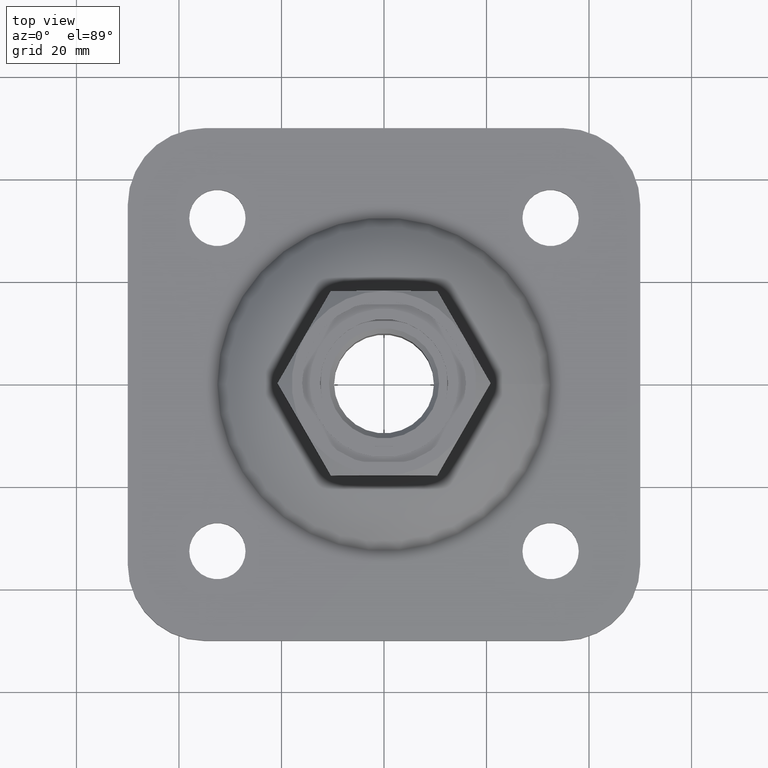
[diagram: clean part render]
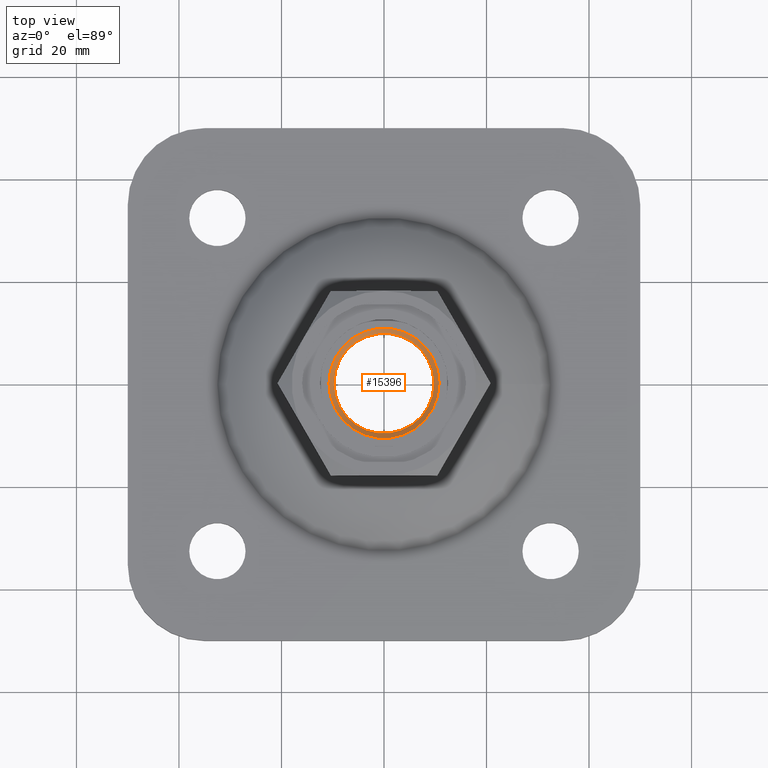
[diagram: same view with one face highlighted and labeled with its STEP entity id]
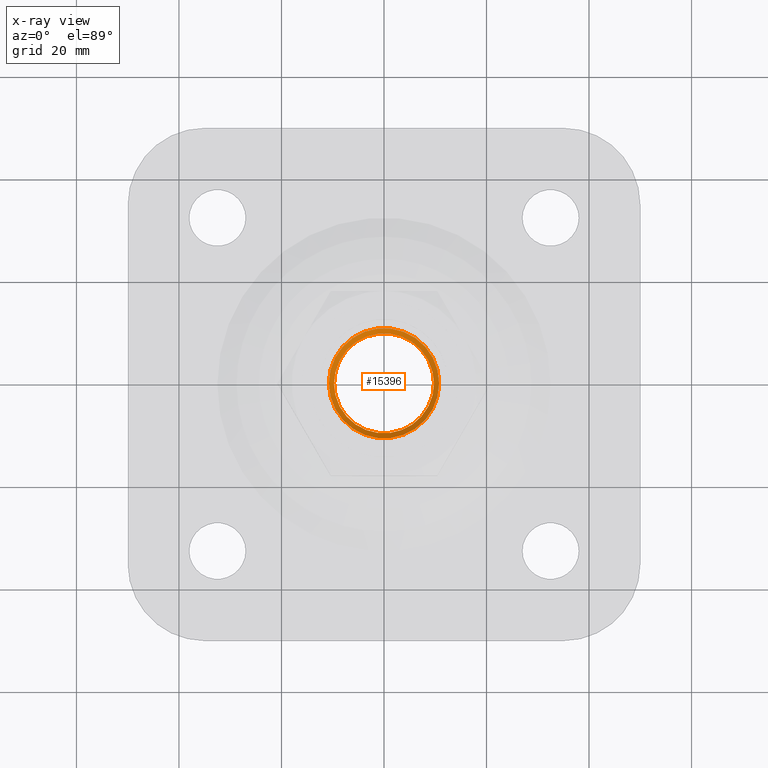
[diagram: x-ray of the same camera — body ghosted, the highlighted face saturated]
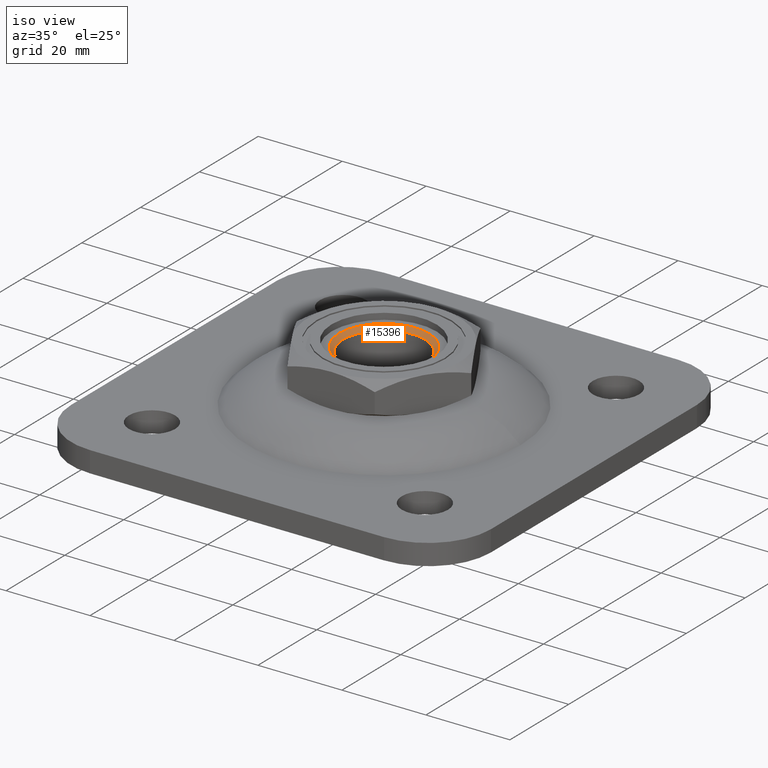
[diagram: same view with one face highlighted and labeled with its STEP entity id]
A machine part, top view. The second image highlights one B-rep face of the part: STEP entity #15396.
The next image is the same camera in x-ray: the body ghosted, the highlighted face saturated — about 0% of this face is hidden behind the body in this view.
A second angle (iso view) of the same face is appended — the face is thin or edge-on in the first view.
In plain terms, the highlighted conical surface has half-angle 45 deg.
Its self-contained STEP definition (entity closure, byte-faithful):
#798 = VERTEX_POINT ( 'NONE', #1093 ) ;
#1093 = CARTESIAN_POINT ( 'NONE',  ( 9.749999999999998224, 0.000000000000000000, 16.49999999999998934 ) ) ;
#1292 = DIRECTION ( 'NONE',  ( 1.000000000000000000, 0.000000000000000000, 0.000000000000000000 ) ) ;
#1997 = AXIS2_PLACEMENT_3D ( 'NONE', #5200, #13620, #9853 ) ;
#2850 = EDGE_CURVE ( 'NONE', #798, #798, #3484, .T. ) ;
#3484 = CIRCLE ( 'NONE', #11061, 9.749999999999998224 ) ;
#4670 = AXIS2_PLACEMENT_3D ( 'NONE', #11013, #5943, #1292 ) ;
#4953 = ORIENTED_EDGE ( 'NONE', *, *, #2850, .F. ) ;
#5200 = CARTESIAN_POINT ( 'NONE',  ( 0.000000000000000000, 0.000000000000000000, 17.49999999999999645 ) ) ;
#5943 = DIRECTION ( 'NONE',  ( -0.000000000000000000, -0.000000000000000000, -1.000000000000000000 ) ) ;
#6471 = VERTEX_POINT ( 'NONE', #7210 ) ;
#7210 = CARTESIAN_POINT ( 'NONE',  ( 10.74999999999998224, 0.000000000000000000, 17.49999999999999645 ) ) ;
#7896 = DIRECTION ( 'NONE',  ( -0.000000000000000000, -0.000000000000000000, 1.000000000000000000 ) ) ;
#8873 = CIRCLE ( 'NONE', #4670, 10.74999999999998224 ) ;
#9594 = ORIENTED_EDGE ( 'NONE', *, *, #9861, .F. ) ;
#9665 = CONICAL_SURFACE ( 'NONE', #1997, 10.74999999999998224, 0.7853981633974361776 ) ;
#9853 = DIRECTION ( 'NONE',  ( 1.000000000000000000, 0.000000000000000000, 0.000000000000000000 ) ) ;
#9861 = EDGE_CURVE ( 'NONE', #6471, #6471, #8873, .T. ) ;
#10335 = EDGE_LOOP ( 'NONE', ( #9594 ) ) ;
#11013 = CARTESIAN_POINT ( 'NONE',  ( 0.000000000000000000, 0.000000000000000000, 17.49999999999999645 ) ) ;
#11061 = AXIS2_PLACEMENT_3D ( 'NONE', #11613, #7896, #12699 ) ;
#11613 = CARTESIAN_POINT ( 'NONE',  ( 0.000000000000000000, 0.000000000000000000, 16.49999999999998934 ) ) ;
#12411 = EDGE_LOOP ( 'NONE', ( #4953 ) ) ;
#12699 = DIRECTION ( 'NONE',  ( 1.000000000000000000, 0.000000000000000000, 0.000000000000000000 ) ) ;
#13610 = FACE_OUTER_BOUND ( 'NONE', #10335, .T. ) ;
#13620 = DIRECTION ( 'NONE',  ( -0.000000000000000000, -0.000000000000000000, 1.000000000000000000 ) ) ;
#14920 = FACE_BOUND ( 'NONE', #12411, .T. ) ;
#15396 = ADVANCED_FACE ( 'NONE', ( #14920, #13610 ), #9665, .F. ) ;